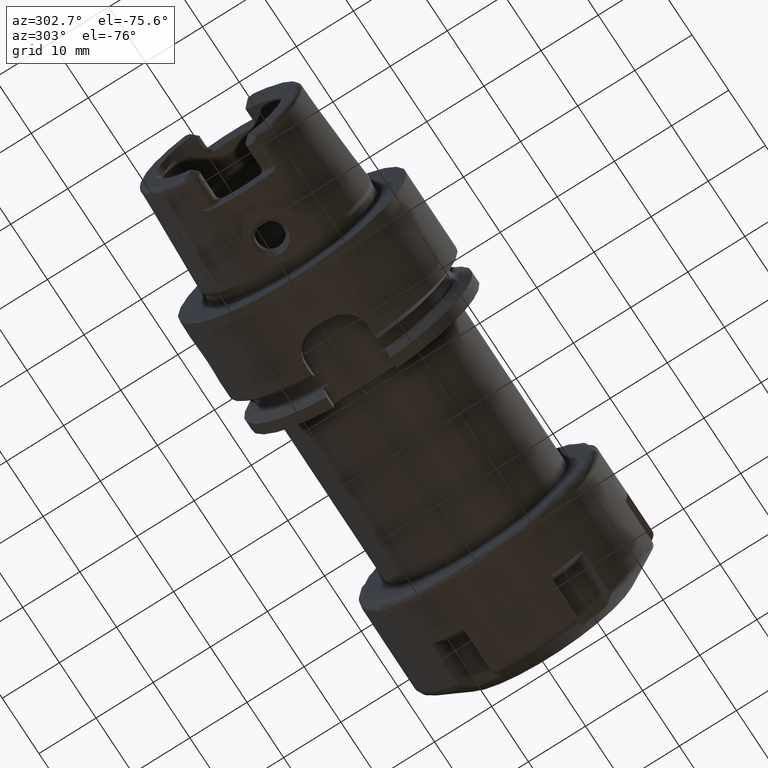
[diagram: clean part render]
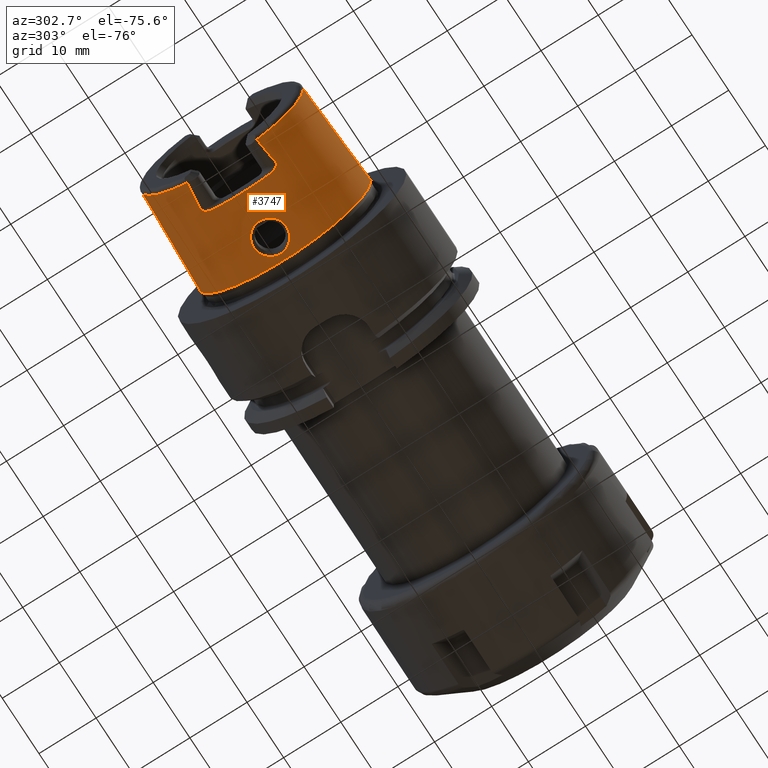
[diagram: same view with one face highlighted and labeled with its STEP entity id]
A machine part, auxiliary view. The second image highlights one B-rep face of the part: STEP entity #3747.
In plain terms, the highlighted conical surface has half-angle 2.868 deg.
Its self-contained STEP definition (entity closure, byte-faithful):
#309=CARTESIAN_POINT('',(-1.914002979389E1,0.E0,0.E0));
#310=DIRECTION('',(-1.E0,0.E0,0.E0));
#311=DIRECTION('',(0.E0,1.E0,0.E0));
#312=AXIS2_PLACEMENT_3D('',#309,#310,#311);
#390=CARTESIAN_POINT('',(-1.914002979389E1,0.E0,0.E0));
#391=DIRECTION('',(-1.E0,0.E0,0.E0));
#392=DIRECTION('',(0.E0,-4.271561162710E-1,-9.041778875488E-1));
#393=AXIS2_PLACEMENT_3D('',#390,#391,#392);
#523=CARTESIAN_POINT('',(-1.914002979389E1,6.084832258490E0,-1.288E1));
#524=CARTESIAN_POINT('',(-1.866428177370E1,6.140631473118E0,-1.288E1));
#525=CARTESIAN_POINT('',(-1.770476082680E1,6.251916414602E0,-1.288E1));
#526=CARTESIAN_POINT('',(-1.624153064153E1,6.418003532151E0,-1.288E1));
#527=CARTESIAN_POINT('',(-1.524986049720E1,6.528261059149E0,-1.288E1));
#528=CARTESIAN_POINT('',(-1.475E1,6.583286053E0,-1.288E1));
#530=CARTESIAN_POINT('',(-1.385E1,0.E0,0.E0));
#531=DIRECTION('',(1.E0,0.E0,0.E0));
#532=DIRECTION('',(0.E0,-3.438896312514E-1,-9.390100753015E-1));
#533=AXIS2_PLACEMENT_3D('',#530,#531,#532);
#535=CARTESIAN_POINT('',(-1.475E1,-6.583286053E0,-1.288E1));
#536=CARTESIAN_POINT('',(-1.524982054879E1,-6.528265456698E0,-1.288E1));
#537=CARTESIAN_POINT('',(-1.624143746232E1,-6.418013966559E0,-1.288E1));
#538=CARTESIAN_POINT('',(-1.770466890957E1,-6.251926990688E0,-1.288E1));
#539=CARTESIAN_POINT('',(-1.866424239688E1,-6.140636091520E0,-1.288E1));
#540=CARTESIAN_POINT('',(-1.914002979389E1,-6.084832258490E0,-1.288E1));
#542=DIRECTION('',(-9.987473526255E-1,5.003724236654E-2,0.E0));
#543=VECTOR('',#542,1.716152713580E1);
#544=CARTESIAN_POINT('',(-2.E0,-1.51037E1,0.E0));
#545=LINE('',#544,#543);
#546=CARTESIAN_POINT('',(-2.E0,0.E0,0.E0));
#547=DIRECTION('',(1.E0,0.E0,0.E0));
#548=DIRECTION('',(0.E0,-1.E0,0.E0));
#549=AXIS2_PLACEMENT_3D('',#546,#547,#548);
#551=DIRECTION('',(-9.987473526255E-1,-5.003724236654E-2,0.E0));
#552=VECTOR('',#551,1.716152713580E1);
#553=CARTESIAN_POINT('',(-2.E0,1.51037E1,0.E0));
#554=LINE('',#553,#552);
#555=CARTESIAN_POINT('',(-3.100721094176E0,2.355300483820E-9,
-1.504852333800E1));
#556=CARTESIAN_POINT('',(-3.100678992068E0,1.770140856364E-1,
-1.504852544731E1));
#557=CARTESIAN_POINT('',(-3.132326517496E0,5.260705930135E-1,
-1.504082638071E1));
#558=CARTESIAN_POINT('',(-3.276379810585E0,1.044086009470E0,-1.500630095381E1));
#559=CARTESIAN_POINT('',(-3.512592451688E0,1.524139717820E0,-1.495278605815E1));
#560=CARTESIAN_POINT('',(-3.833687591476E0,1.953544680709E0,-1.488600819184E1));
#561=CARTESIAN_POINT('',(-4.230740763601E0,2.317252707807E0,-1.481301275923E1));
#562=CARTESIAN_POINT('',(-4.690735032711E0,2.601743558394E0,-1.474174097836E1));
#563=CARTESIAN_POINT('',(-5.196043270225E0,2.795849602058E0,-1.467995762945E1));
#564=CARTESIAN_POINT('',(-5.728397413562E0,2.893526205649E0,-1.463359375698E1));
#565=CARTESIAN_POINT('',(-6.268838892341E0,2.892302651543E0,-1.460622521096E1));
#566=CARTESIAN_POINT('',(-6.799055409553E0,2.793054820950E0,-1.459870014220E1));
#567=CARTESIAN_POINT('',(-7.301520135950E0,2.599345103394E0,-1.460927773066E1));
#568=CARTESIAN_POINT('',(-7.759558111339E0,2.317247837012E0,-1.463398490261E1));
#569=CARTESIAN_POINT('',(-8.156997490557E0,1.956493354144E0,-1.466709282977E1));
#570=CARTESIAN_POINT('',(-8.480668617417E0,1.528857129790E0,-1.470208333882E1));
#571=CARTESIAN_POINT('',(-8.720164654117E0,1.048949256724E0,-1.473259839109E1));
#572=CARTESIAN_POINT('',(-8.866931191459E0,5.291606107420E-1,
-1.475331648138E1));
#573=CARTESIAN_POINT('',(-8.899377349278E0,1.783256028732E-1,
-1.475800766975E1));
#574=CARTESIAN_POINT('',(-8.899281891742E0,-2.789593368174E-9,
-1.475801245217E1));
#576=CARTESIAN_POINT('',(-8.899281891742E0,-2.789593368174E-9,
-1.475801245217E1));
#577=CARTESIAN_POINT('',(-8.899334330159E0,-1.786286621641E-1,
-1.475800982501E1));
#578=CARTESIAN_POINT('',(-8.866825589125E0,-5.299514743757E-1,
-1.475330104585E1));
#579=CARTESIAN_POINT('',(-8.719697092996E0,-1.050224395846E0,
-1.473253325390E1));
#580=CARTESIAN_POINT('',(-8.479919279379E0,-1.530046308081E0,
-1.470199491799E1));
#581=CARTESIAN_POINT('',(-8.156118401378E0,-1.957441701654E0,
-1.466700840239E1));
#582=CARTESIAN_POINT('',(-7.758626814124E0,-2.317930409857E0,
-1.463392212817E1));
#583=CARTESIAN_POINT('',(-7.300595156270E0,-2.599797148337E0,
-1.460924326732E1));
#584=CARTESIAN_POINT('',(-6.798093734571E0,-2.793326952534E0,
-1.459869656098E1));
#585=CARTESIAN_POINT('',(-6.267790654100E0,-2.892403072315E0,
-1.460625866568E1));
#586=CARTESIAN_POINT('',(-5.727376347055E0,-2.893428802036E0,
-1.463366538841E1));
#587=CARTESIAN_POINT('',(-5.195136889270E0,-2.795595016538E0,
-1.468005287120E1));
#588=CARTESIAN_POINT('',(-4.689868987718E0,-2.601320048894E0,
-1.474186087469E1));
#589=CARTESIAN_POINT('',(-4.229868853111E0,-2.316609474653E0,
-1.481315928607E1));
#590=CARTESIAN_POINT('',(-3.832912315325E0,-1.952693237424E0,
-1.488616064913E1));
#591=CARTESIAN_POINT('',(-3.511964621737E0,-1.523124607595E0,
-1.495292291485E1));
#592=CARTESIAN_POINT('',(-3.275978248414E0,-1.042984620877E0,
-1.500639621790E1));
#593=CARTESIAN_POINT('',(-3.132231598315E0,-5.253514606417E-1,
-1.504084990484E1));
#594=CARTESIAN_POINT('',(-3.100638938035E0,-1.767365759368E-1,
-1.504852745402E1));
#595=CARTESIAN_POINT('',(-3.100721094176E0,2.355300483820E-9,
-1.504852333800E1));
#609=CARTESIAN_POINT('',(-1.402670569594E1,5.905E0,-1.324442054771E1));
#610=CARTESIAN_POINT('',(-1.404882479779E1,5.969278146074E0,-1.321454893797E1));
#611=CARTESIAN_POINT('',(-1.409709445692E1,6.089773415238E0,-1.315704770185E1));
#612=CARTESIAN_POINT('',(-1.418239836628E1,6.246983837342E0,-1.307827968261E1));
#613=CARTESIAN_POINT('',(-1.427888622583E1,6.376580121318E0,-1.301008677364E1));
#614=CARTESIAN_POINT('',(-1.438631319279E1,6.478359571321E0,-1.295359845288E1));
#615=CARTESIAN_POINT('',(-1.450648070073E1,6.550491352199E0,-1.291044215515E1));
#616=CARTESIAN_POINT('',(-1.462941955296E1,6.586229352150E0,-1.288528378830E1));
#617=CARTESIAN_POINT('',(-1.471014531727E1,6.587673284406E0,-1.288E1));
#618=CARTESIAN_POINT('',(-1.475E1,6.583286053E0,-1.288E1));
#620=CARTESIAN_POINT('',(-1.385E1,4.989843707803E0,-1.362505027778E1));
#621=CARTESIAN_POINT('',(-1.385E1,5.083396973823E0,-1.359078866653E1));
#622=CARTESIAN_POINT('',(-1.386328675212E1,5.276146643957E0,-1.351730946468E1));
#623=CARTESIAN_POINT('',(-1.392341325654E1,5.581773160047E0,-1.339090310914E1));
#624=CARTESIAN_POINT('',(-1.398898022844E1,5.795369729915E0,-1.329536838681E1));
#625=CARTESIAN_POINT('',(-1.402670569594E1,5.905E0,-1.324442054771E1));
#741=CARTESIAN_POINT('',(-1.402670569594E1,-5.905E0,-1.324442054771E1));
#742=CARTESIAN_POINT('',(-1.398890817763E1,-5.795160350153E0,
-1.329546569066E1));
#743=CARTESIAN_POINT('',(-1.392327969089E1,-5.581271085665E0,
-1.339112052917E1));
#744=CARTESIAN_POINT('',(-1.386324987945E1,-5.275796566756E0,
-1.351744572066E1));
#745=CARTESIAN_POINT('',(-1.385E1,-5.083246430339E0,-1.359084379943E1));
#746=CARTESIAN_POINT('',(-1.385E1,-4.989843707803E0,-1.362505027778E1));
#753=CARTESIAN_POINT('',(-1.475E1,-6.583286053E0,-1.288E1));
#754=CARTESIAN_POINT('',(-1.471017927274E1,-6.587669546564E0,-1.288E1));
#755=CARTESIAN_POINT('',(-1.462941669271E1,-6.586499617253E0,
-1.288514677537E1));
#756=CARTESIAN_POINT('',(-1.450291703478E1,-6.549001623629E0,
-1.291140038669E1));
#757=CARTESIAN_POINT('',(-1.438515235308E1,-6.477174109922E0,
-1.295425185451E1));
#758=CARTESIAN_POINT('',(-1.427810220899E1,-6.375905036179E0,
-1.301046901446E1));
#759=CARTESIAN_POINT('',(-1.418003844350E1,-6.243306530741E0,
-1.308017181875E1));
#760=CARTESIAN_POINT('',(-1.409621026516E1,-6.087581639126E0,
-1.315809916272E1));
#761=CARTESIAN_POINT('',(-1.404850185174E1,-5.968339664307E0,
-1.321498507316E1));
#762=CARTESIAN_POINT('',(-1.402670569594E1,-5.905E0,-1.324442054771E1));
#2707=CARTESIAN_POINT('',(-2.E0,1.51037E1,0.E0));
#2708=CARTESIAN_POINT('',(-2.E0,-1.51037E1,0.E0));
#2709=VERTEX_POINT('',#2707);
#2710=VERTEX_POINT('',#2708);
#2711=CARTESIAN_POINT('',(-1.914002979389E1,1.424498450733E1,0.E0));
#2712=VERTEX_POINT('',#2711);
#2713=CARTESIAN_POINT('',(-1.914002979389E1,-1.424498450733E1,0.E0));
#2714=VERTEX_POINT('',#2713);
#2731=CARTESIAN_POINT('',(-1.914002979389E1,6.084832258490E0,-1.288E1));
#2732=VERTEX_POINT('',#2731);
#2733=CARTESIAN_POINT('',(-1.914002979389E1,-6.084832258490E0,-1.288E1));
#2734=VERTEX_POINT('',#2733);
#2758=CARTESIAN_POINT('',(-1.402670569594E1,-5.905E0,-1.324442054771E1));
#2760=VERTEX_POINT('',#2758);
#2761=VERTEX_POINT('',#746);
#2762=VERTEX_POINT('',#620);
#2763=VERTEX_POINT('',#625);
#2774=CARTESIAN_POINT('',(-1.475E1,-6.583286053E0,-1.288E1));
#2775=VERTEX_POINT('',#2774);
#2776=CARTESIAN_POINT('',(-1.475E1,6.583286053E0,-1.288E1));
#2777=VERTEX_POINT('',#2776);
#3057=VERTEX_POINT('',#555);
#3058=VERTEX_POINT('',#574);
#3715=CARTESIAN_POINT('',(-1.057001489695E1,0.E0,0.E0));
#3716=DIRECTION('',(1.E0,0.E0,0.E0));
#3717=DIRECTION('',(0.E0,-1.E0,0.E0));
#3718=AXIS2_PLACEMENT_3D('',#3715,#3716,#3717);
#3719=CONICAL_SURFACE('',#3718,1.467434225366E1,2.868120487315E0);
#3721=ORIENTED_EDGE('',*,*,#3720,.T.);
#3723=ORIENTED_EDGE('',*,*,#3722,.F.);
#3725=ORIENTED_EDGE('',*,*,#3724,.F.);
#3727=ORIENTED_EDGE('',*,*,#3726,.F.);
#3729=ORIENTED_EDGE('',*,*,#3728,.F.);
#3731=ORIENTED_EDGE('',*,*,#3730,.F.);
#3732=ORIENTED_EDGE('',*,*,#3706,.T.);
#3733=ORIENTED_EDGE('',*,*,#3533,.T.);
#3734=ORIENTED_EDGE('',*,*,#3230,.F.);
#3736=ORIENTED_EDGE('',*,*,#3735,.T.);
#3737=ORIENTED_EDGE('',*,*,#3226,.T.);
#3738=ORIENTED_EDGE('',*,*,#3512,.T.);
#3739=EDGE_LOOP('',(#3721,#3723,#3725,#3727,#3729,#3731,#3732,#3733,#3734,#3736,
#3737,#3738));
#3740=FACE_OUTER_BOUND('',#3739,.F.);
#3742=ORIENTED_EDGE('',*,*,#3741,.F.);
#3744=ORIENTED_EDGE('',*,*,#3743,.F.);
#3745=EDGE_LOOP('',(#3742,#3744));
#3746=FACE_BOUND('',#3745,.F.);
#3747=ADVANCED_FACE('',(#3740,#3746),#3719,.T.);
#313=CIRCLE('',#312,1.424498450733E1);
#394=CIRCLE('',#393,1.424498450733E1);
#529=B_SPLINE_CURVE_WITH_KNOTS('',3,(#523,#524,#525,#526,#527,#528),
.UNSPECIFIED.,.F.,.F.,(4,1,1,4),(0.E0,3.333333333333E-1,6.666666666667E-1,1.E0),
.UNSPECIFIED.);
#534=CIRCLE('',#533,1.4510015E1);
#541=B_SPLINE_CURVE_WITH_KNOTS('',3,(#535,#536,#537,#538,#539,#540),
.UNSPECIFIED.,.F.,.F.,(4,1,1,4),(0.E0,3.333333333333E-1,6.666666666667E-1,1.E0),
.UNSPECIFIED.);
#550=CIRCLE('',#549,1.51037E1);
#575=B_SPLINE_CURVE_WITH_KNOTS('',3,(#555,#556,#557,#558,#559,#560,#561,#562,
#563,#564,#565,#566,#567,#568,#569,#570,#571,#572,#573,#574),.UNSPECIFIED.,.F.,
.F.,(4,1,1,1,1,1,1,1,1,1,1,1,1,1,1,1,1,4),(0.E0,5.882352941176E-2,
1.176470588235E-1,1.764705882353E-1,2.352941176471E-1,2.941176470588E-1,
3.529411764706E-1,4.117647058824E-1,4.705882352941E-1,5.294117647059E-1,
5.882352941176E-1,6.470588235294E-1,7.058823529412E-1,7.647058823529E-1,
8.235294117647E-1,8.823529411765E-1,9.411764705882E-1,1.E0),.UNSPECIFIED.);
#596=B_SPLINE_CURVE_WITH_KNOTS('',3,(#576,#577,#578,#579,#580,#581,#582,#583,
#584,#585,#586,#587,#588,#589,#590,#591,#592,#593,#594,#595),.UNSPECIFIED.,.F.,
.F.,(4,1,1,1,1,1,1,1,1,1,1,1,1,1,1,1,1,4),(0.E0,5.882352941176E-2,
1.176470588235E-1,1.764705882353E-1,2.352941176471E-1,2.941176470588E-1,
3.529411764706E-1,4.117647058824E-1,4.705882352941E-1,5.294117647059E-1,
5.882352941176E-1,6.470588235294E-1,7.058823529412E-1,7.647058823529E-1,
8.235294117647E-1,8.823529411765E-1,9.411764705882E-1,1.E0),.UNSPECIFIED.);
#619=B_SPLINE_CURVE_WITH_KNOTS('',3,(#609,#610,#611,#612,#613,#614,#615,#616,
#617,#618),.UNSPECIFIED.,.F.,.F.,(4,1,1,1,1,1,1,4),(0.E0,1.428571428571E-1,
2.857142857143E-1,4.285714285714E-1,5.714285714286E-1,7.142857142857E-1,
8.571428571429E-1,1.E0),.UNSPECIFIED.);
#626=B_SPLINE_CURVE_WITH_KNOTS('',3,(#620,#621,#622,#623,#624,#625),
.UNSPECIFIED.,.F.,.F.,(4,1,1,4),(0.E0,3.333333333333E-1,6.666666666667E-1,1.E0),
.UNSPECIFIED.);
#747=B_SPLINE_CURVE_WITH_KNOTS('',3,(#741,#742,#743,#744,#745,#746),
.UNSPECIFIED.,.F.,.F.,(4,1,1,4),(0.E0,3.333333333333E-1,6.666666666667E-1,1.E0),
.UNSPECIFIED.);
#763=B_SPLINE_CURVE_WITH_KNOTS('',3,(#753,#754,#755,#756,#757,#758,#759,#760,
#761,#762),.UNSPECIFIED.,.F.,.F.,(4,1,1,1,1,1,1,4),(0.E0,1.428571428571E-1,
2.857142857143E-1,4.285714285714E-1,5.714285714286E-1,7.142857142857E-1,
8.571428571429E-1,1.E0),.UNSPECIFIED.);
#3226=EDGE_CURVE('',#2709,#2712,#554,.T.);
#3230=EDGE_CURVE('',#2710,#2714,#545,.T.);
#3512=EDGE_CURVE('',#2712,#2732,#313,.T.);
#3533=EDGE_CURVE('',#2734,#2714,#394,.T.);
#3706=EDGE_CURVE('',#2775,#2734,#541,.T.);
#3720=EDGE_CURVE('',#2732,#2777,#529,.T.);
#3722=EDGE_CURVE('',#2763,#2777,#619,.T.);
#3724=EDGE_CURVE('',#2762,#2763,#626,.T.);
#3726=EDGE_CURVE('',#2761,#2762,#534,.T.);
#3728=EDGE_CURVE('',#2760,#2761,#747,.T.);
#3730=EDGE_CURVE('',#2775,#2760,#763,.T.);
#3735=EDGE_CURVE('',#2710,#2709,#550,.T.);
#3741=EDGE_CURVE('',#3057,#3058,#575,.T.);
#3743=EDGE_CURVE('',#3058,#3057,#596,.T.);